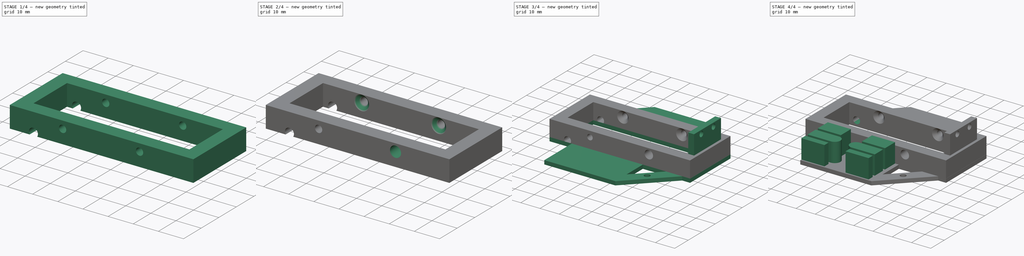
[diagram: build sequence overview — one tinted view per stage of 4, left to right]
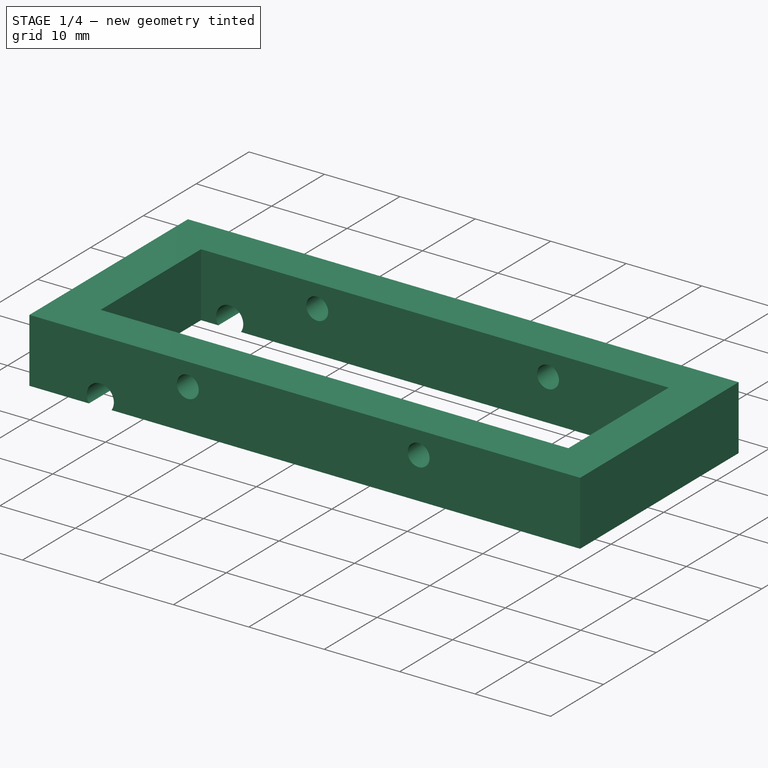
[diagram: stage 1 of 4 — iso view after this stage's code; geometry added in this stage tinted green]
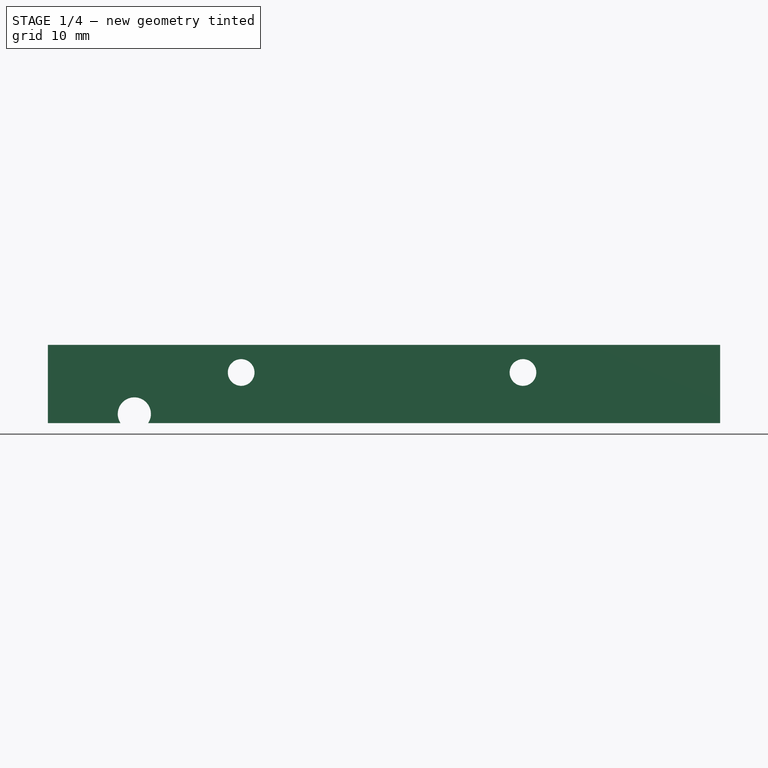
[diagram: stage 1 of 4 — front view after this stage's code; geometry added in this stage tinted green]
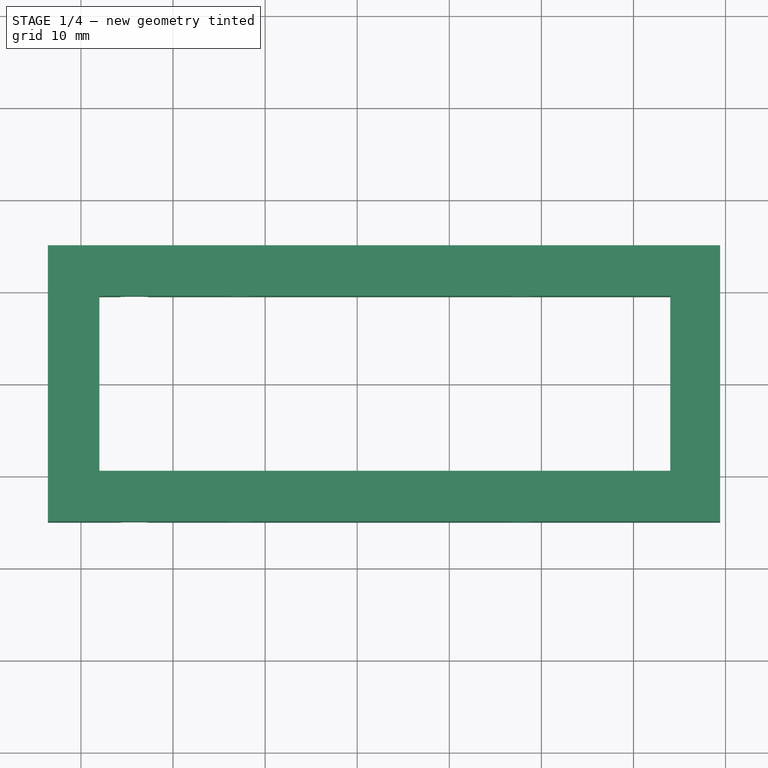
[diagram: stage 1 of 4 — top view after this stage's code; geometry added in this stage tinted green]
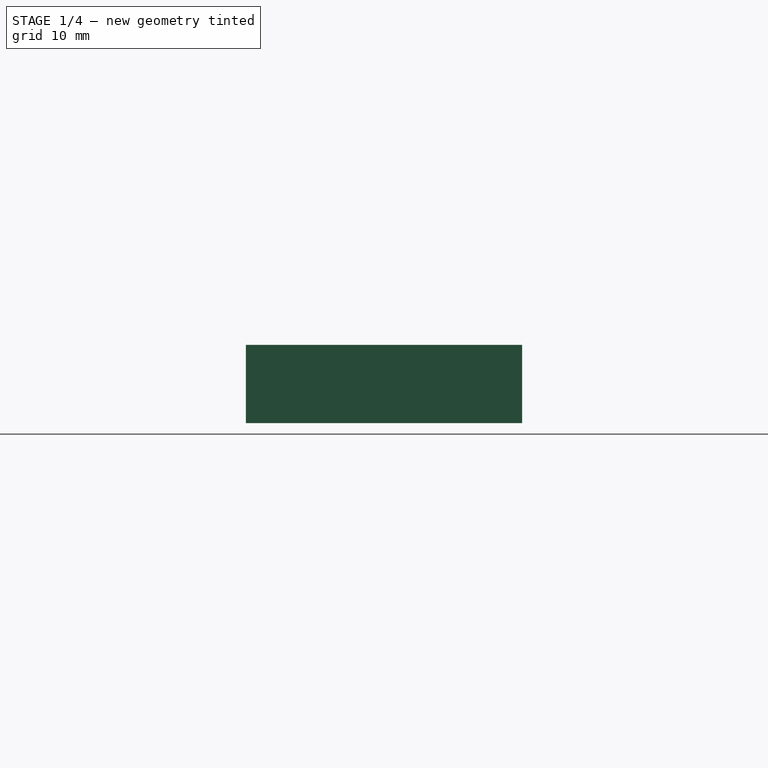
[diagram: stage 1 of 4 — right view after this stage's code; geometry added in this stage tinted green]
FCSTD DOCUMENT  (FreeCAD 0.15R4671 (Git))
Label: PeripheralV6
License: All rights reserved
LicenseURL: http://en.wikipedia.org/wiki/All_rights_reserved
objects: Sketcher::SketchObject×8, PartDesign::Pad×4, PartDesign::Pocket×4, PartDesign::Chamfer×1
note: 25 computed .brp shape members not serialized (recipe doc carries the construction recipe); baked Part::Feature solids carry a one-line shape summary decoded from their .brp

FEATURE [PartDesign::Pad] Pad004
  Length = 8.5
  Length2 = 100
  Placement = pos=(0,0,2) rot=(0,0,1;0rad)
  Sketch = -> Sketch001
  Type = 0
FEATURE [Sketcher::SketchObject] Sketch003
  Placement = pos=(0,15,2) rot=(0,0.707107,0.707107;3.14159rad)
  Support = -> Pad004 [Face1]
  sketch-geometry (3):
    g0: Circle CenterX=-18 CenterY=5.5 CenterZ=0 NormalX=0 NormalY=0 NormalZ=1 Radius=1.45
    g1: Circle CenterX=12.6 CenterY=5.5 CenterZ=0 NormalX=0 NormalY=0 NormalZ=1 Radius=1.45
    g2: Circle CenterX=24.2 CenterY=1 CenterZ=0 NormalX=0 NormalY=0 NormalZ=1 Radius=1.8
  constraints (9):
    c: DistanceY(g1,g0) = 0
    c: Radius(g0) = 1.45
    c: Equal(g0,g1)
    c: DistanceX(g1,g0) = -30.6
    c: DistanceY(g-1,g0) = 5.5
    c: DistanceX(g-1,g0) = -18
    c: Radius(g2) = 1.8
    c: DistanceY(g-1,g2) = 1
    c: DistanceX(g-1,g2) = 24.2
FEATURE [PartDesign::Pocket] Pocket004  label="Pocket002"
  Length = 50
  Placement = pos=(0,0,2) rot=(0,0,1;0rad)
  Sketch = -> Sketch003
  Type = 0
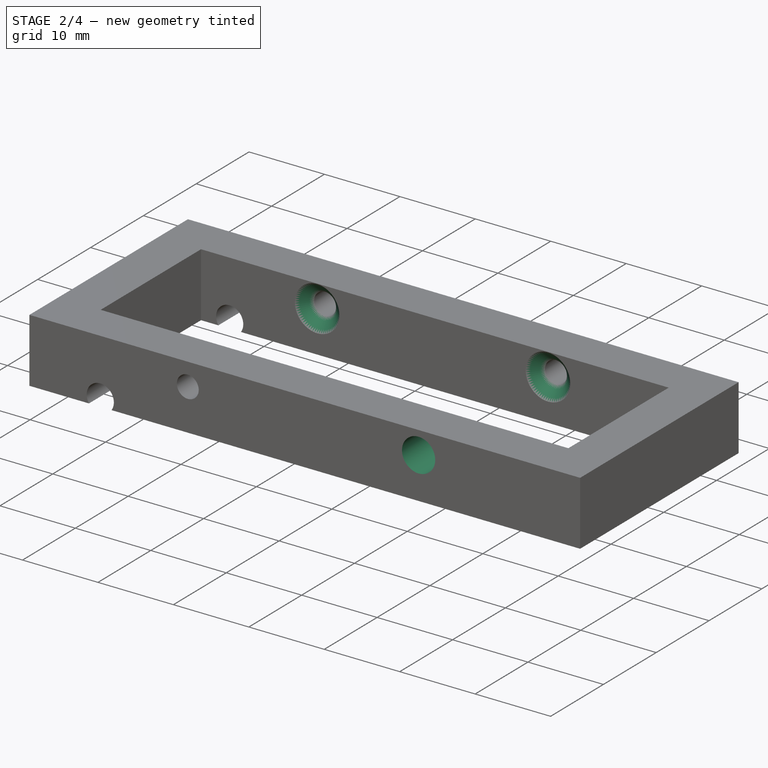
[diagram: stage 2 of 4 — iso view after this stage's code; geometry added in this stage tinted green]
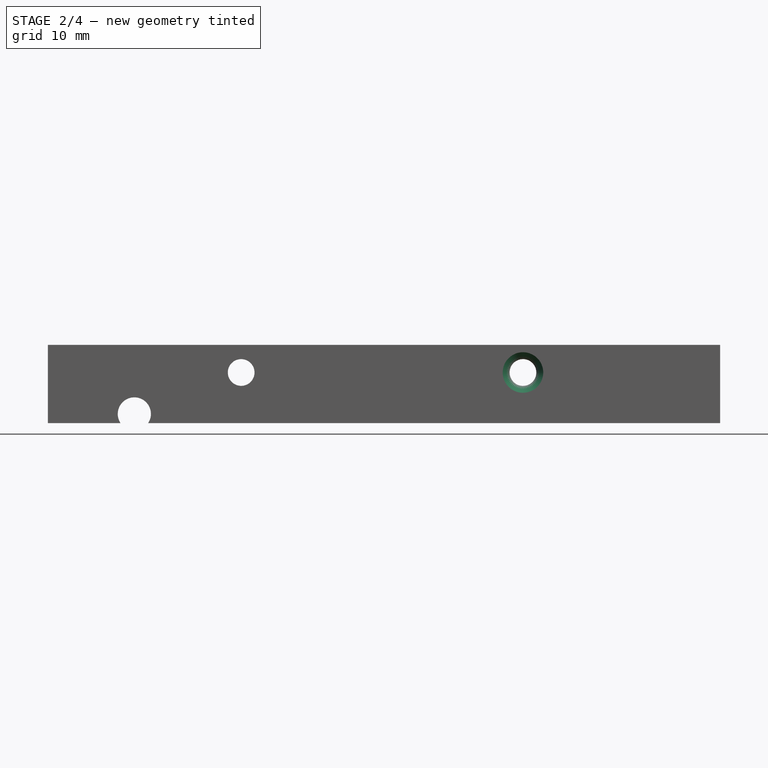
[diagram: stage 2 of 4 — front view after this stage's code; geometry added in this stage tinted green]
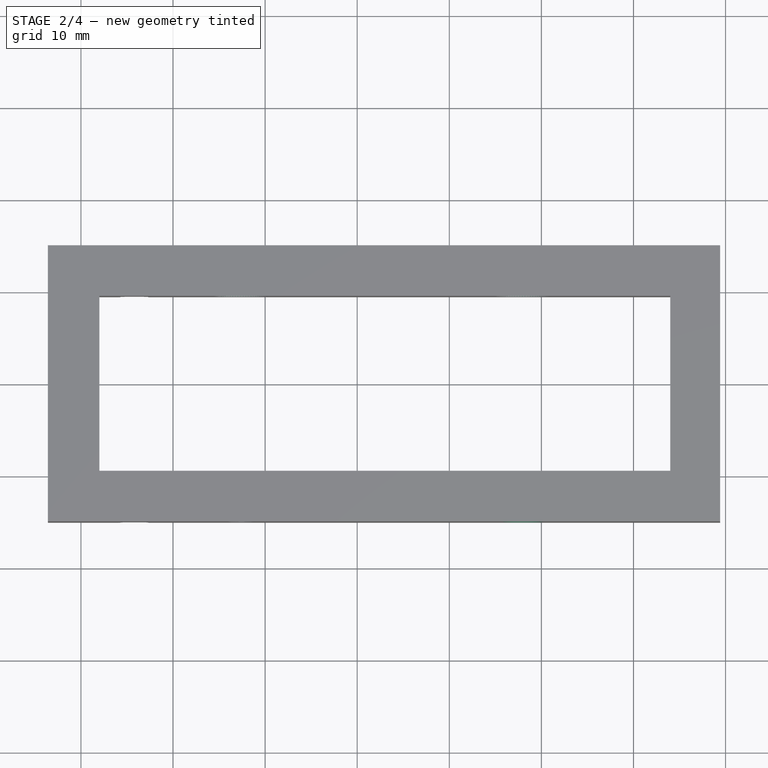
[diagram: stage 2 of 4 — top view after this stage's code; geometry added in this stage tinted green]
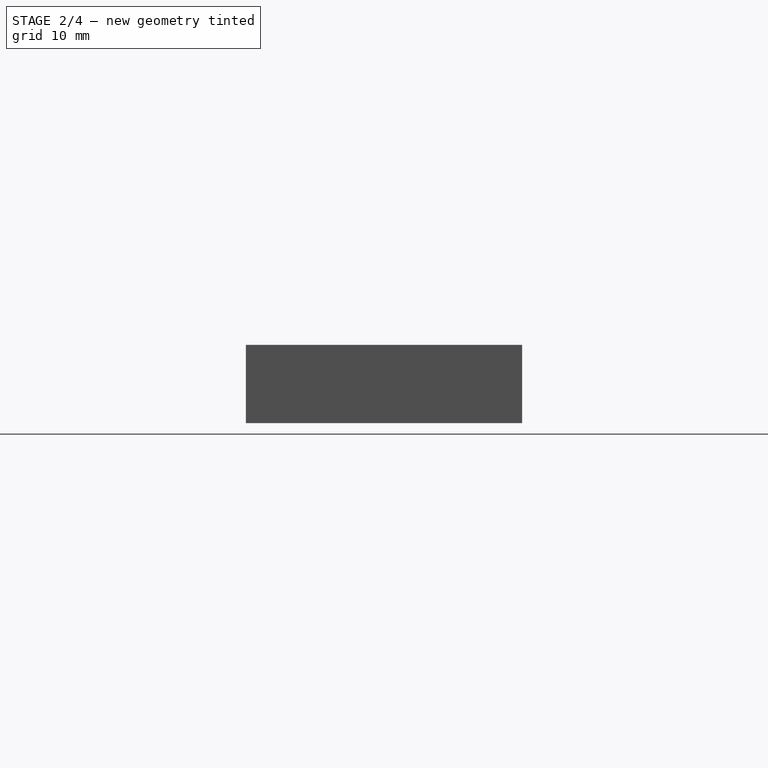
[diagram: stage 2 of 4 — right view after this stage's code; geometry added in this stage tinted green]
FEATURE [Sketcher::SketchObject] Sketch005
  Placement = pos=(0,-15,2) rot=(1,0,0;1.5708rad)
  Support = -> Pocket004 [Face15]
  sketch-geometry (1):
    g0: Circle CenterX=18 CenterY=5.5 CenterZ=0 NormalX=0 NormalY=0 NormalZ=1 Radius=2.2
  constraints (3):
    c: DistanceX(g-1,g0) = 18
    c: DistanceY(g-1,g0) = 5.5
    c: Radius(g0) = 2.2
FEATURE [PartDesign::Pocket] Pocket
  Length = 5.5
  Placement = pos=(0,0,2) rot=(0,0,1;0rad)
  Sketch = -> Sketch005
  Type = 0
FEATURE [PartDesign::Chamfer] Chamfer
  Base = -> Pocket [Edge39,Edge37]
  Placement = pos=(0,0,2) rot=(0,0,1;0rad)
  Size = 1.5
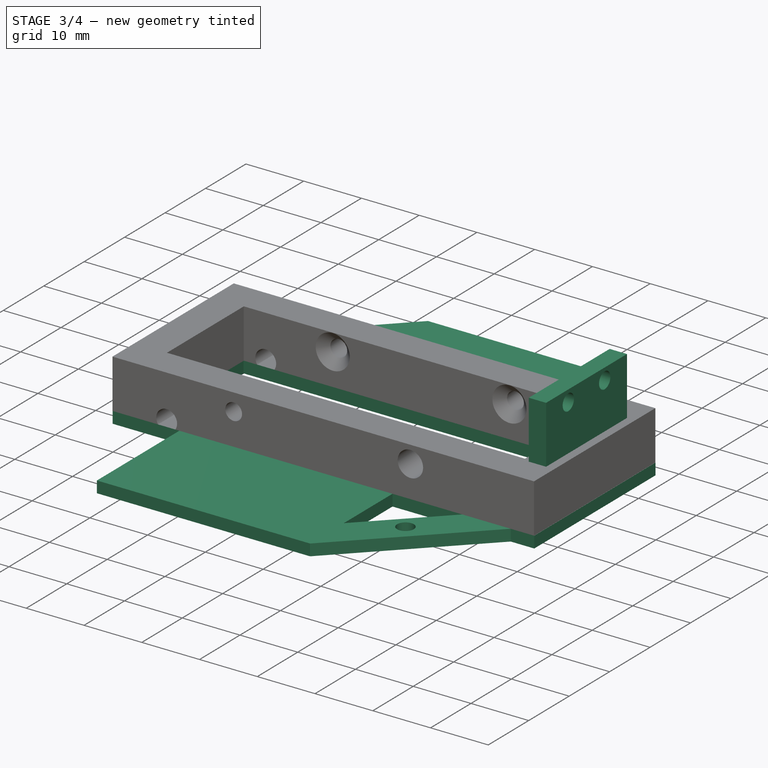
[diagram: stage 3 of 4 — iso view after this stage's code; geometry added in this stage tinted green]
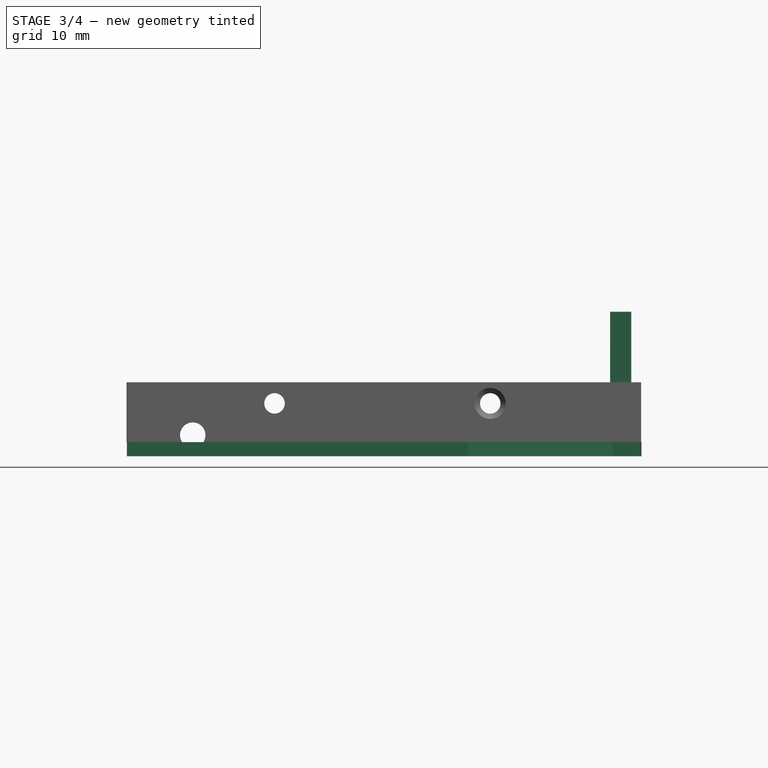
[diagram: stage 3 of 4 — front view after this stage's code; geometry added in this stage tinted green]
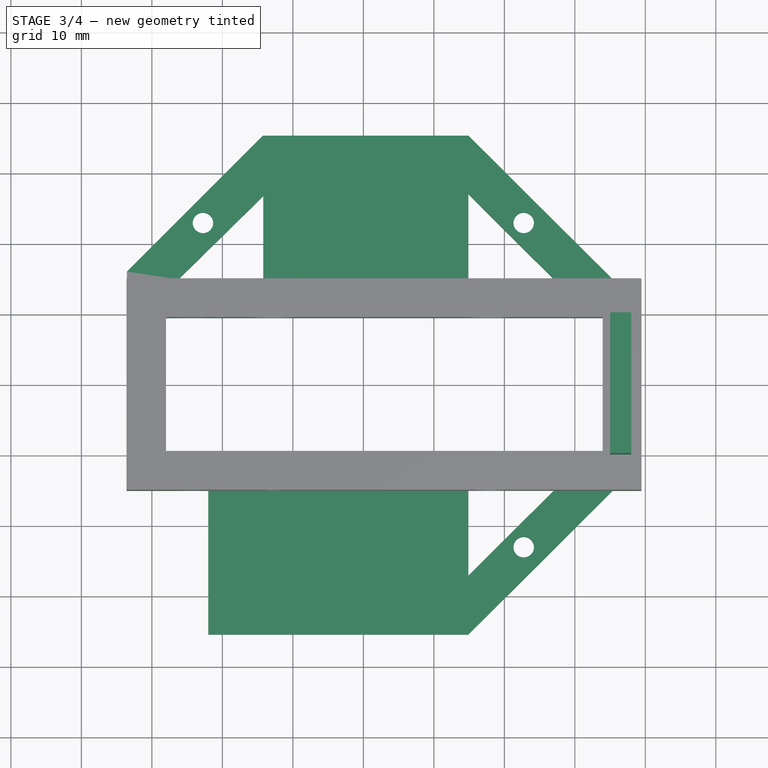
[diagram: stage 3 of 4 — top view after this stage's code; geometry added in this stage tinted green]
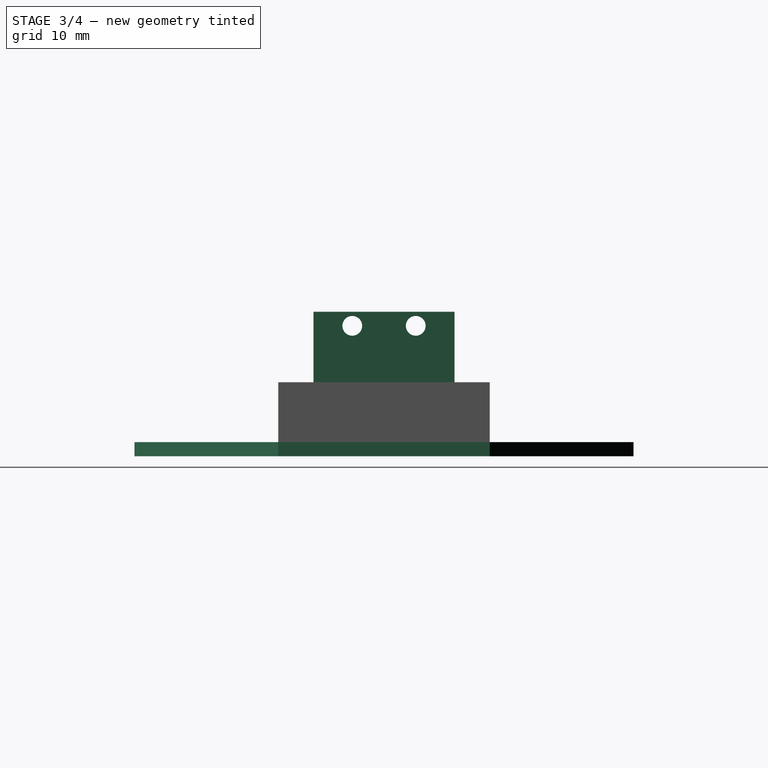
[diagram: stage 3 of 4 — right view after this stage's code; geometry added in this stage tinted green]
FEATURE [PartDesign::Pad] Pad
  Length = 2
  Length2 = 100
  Sketch = -> Sketch
  Type = 0
FEATURE [Sketcher::SketchObject] Sketch006
  Placement = pos=(0,0,10.5) rot=(0,0,1;0rad)
  Support = -> Chamfer [Face10]
  sketch-geometry (4):
    g0: LineSegment StartX=38 StartY=10 StartZ=0 EndX=35 EndY=10 EndZ=0
    g1: LineSegment StartX=35 StartY=10 StartZ=0 EndX=35 EndY=-10 EndZ=0
    g2: LineSegment StartX=35 StartY=-10 StartZ=0 EndX=38 EndY=-10 EndZ=0
    g3: LineSegment StartX=38 StartY=-10 StartZ=0 EndX=38 EndY=10 EndZ=0
  constraints (12):
    c: Coincident(g0,g1)
    c: Coincident(g1,g2)
    c: Coincident(g2,g3)
    c: Coincident(g3,g0)
    c: Horizontal(g0)
    c: Horizontal(g2)
    c: Vertical(g1)
    c: Vertical(g3)
    c: DistanceX(g-1,g0) = 38
    c: DistanceY(g3) = 20
    c: Symmetric(g0,g2,g-1)
    c: DistanceX(g0) = -3
FEATURE [PartDesign::Pad] Pad005
  Length = 10
  Length2 = 100
  Placement = pos=(0,0,2) rot=(0,0,1;0rad)
  Sketch = -> Sketch006
  Type = 0
FEATURE [Sketcher::SketchObject] Sketch007
  Placement = pos=(38,0,2) rot=(0.57735,0.57735,0.57735;2.0944rad)
  Support = -> Pad005 [Face5]
  sketch-geometry (2):
    g0: Circle CenterX=-4.5 CenterY=16.5 CenterZ=0 NormalX=0 NormalY=0 NormalZ=1 Radius=1.4
    g1: Circle CenterX=4.5 CenterY=16.5 CenterZ=0 NormalX=0 NormalY=0 NormalZ=1 Radius=1.4
  constraints (6):
    c: DistanceX(g1,g0) = -9
    c: DistanceY(g1,g0) = 0
    c: Radius(g1) = 1.4
    c: Equal(g1,g0)
    c: Symmetric(g0,g1,g-2)
    c: DistanceY(g-1,g1) = 16.5
FEATURE [PartDesign::Pocket] Pocket006
  Length = 5
  Placement = pos=(0,0,2) rot=(0,0,1;0rad)
  Sketch = -> Sketch007
  Type = 0
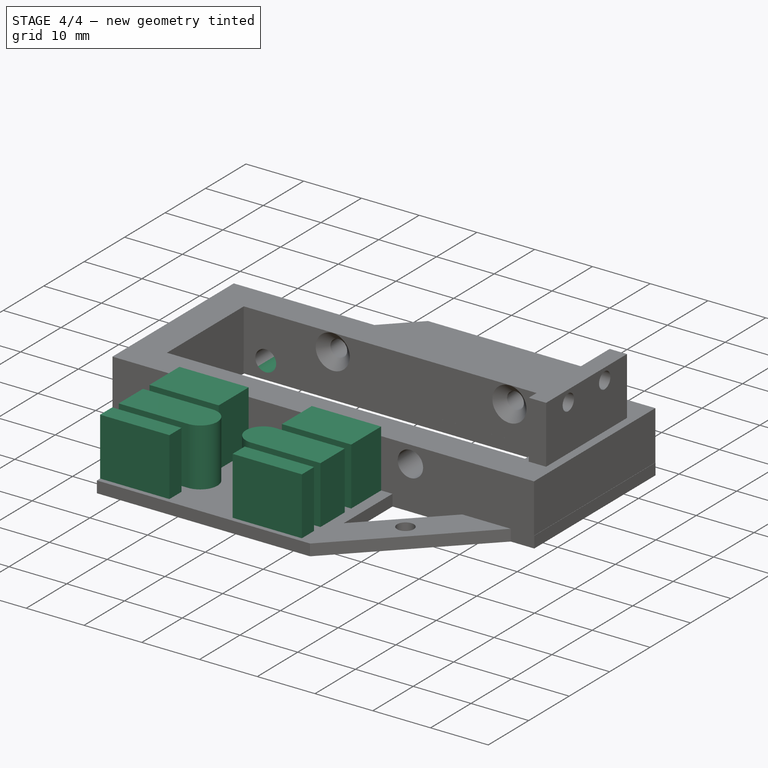
[diagram: stage 4 of 4 — iso view after this stage's code; geometry added in this stage tinted green]
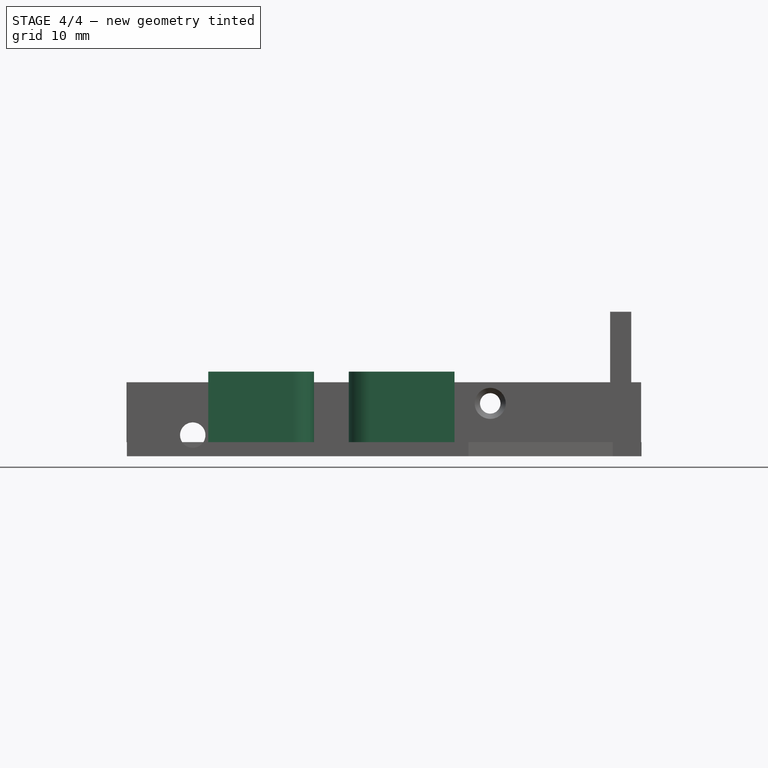
[diagram: stage 4 of 4 — front view after this stage's code; geometry added in this stage tinted green]
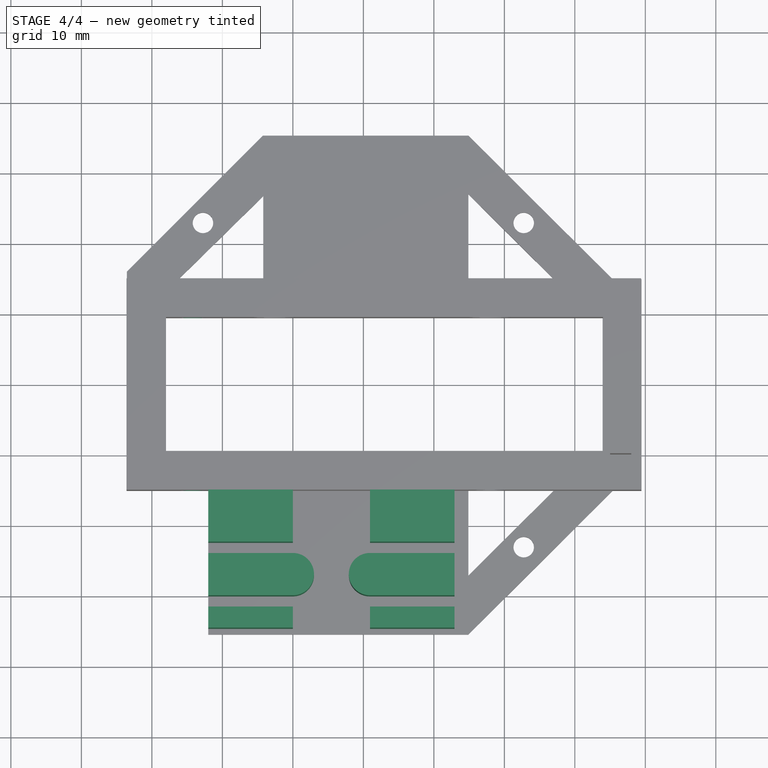
[diagram: stage 4 of 4 — top view after this stage's code; geometry added in this stage tinted green]
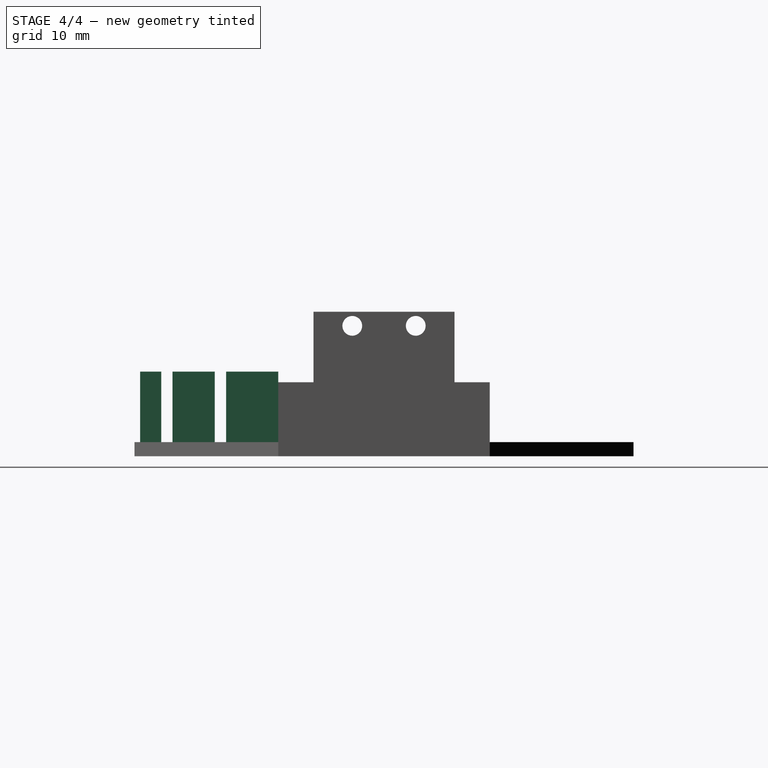
[diagram: stage 4 of 4 — right view after this stage's code; geometry added in this stage tinted green]
FEATURE [Sketcher::SketchObject] Sketch
  sketch-geometry (27):
    g0: Circle CenterX=-22.75 CenterY=23 CenterZ=0 NormalX=0 NormalY=0 NormalZ=1 Radius=1.45
    g1: Circle CenterX=22.75 CenterY=23 CenterZ=0 NormalX=0 NormalY=0 NormalZ=1 Radius=1.45
    g2: Circle CenterX=22.75 CenterY=-23 CenterZ=0 NormalX=0 NormalY=0 NormalZ=1 Radius=1.45
    g3: LineSegment StartX=-28.05 StartY=9.5 StartZ=0 EndX=33.95 EndY=9.5 EndZ=0
    g4: LineSegment StartX=33.95 StartY=9.5 StartZ=0 EndX=33.95 EndY=-9.5 EndZ=0
    g5: LineSegment StartX=33.95 StartY=-9.5 StartZ=0 EndX=-28.05 EndY=-9.5 EndZ=0
    g6: LineSegment StartX=-28.05 StartY=-9.5 StartZ=0 EndX=-28.05 EndY=9.5 EndZ=0
    g7: LineSegment StartX=-33.55 StartY=16.0884 StartZ=0 EndX=-14.25 EndY=35.3884 EndZ=0
    g8: LineSegment StartX=14.8987 StartY=35.3884 StartZ=0 EndX=35.3756 EndY=15 EndZ=0
    g9: LineSegment StartX=-33.55 StartY=-15 StartZ=0 EndX=-33.55 EndY=16.0884 EndZ=0
    g10: LineSegment StartX=14.8987 StartY=-35.3884 StartZ=0 EndX=35.3756 EndY=-15 EndZ=0
    g11: LineSegment StartX=-14.202 StartY=26.7958 StartZ=0 EndX=-26.2128 EndY=15 EndZ=0
    g12: LineSegment StartX=27.0244 StartY=15 StartZ=0 EndX=14.8988 EndY=27.0732 EndZ=0
    g13: LineSegment StartX=14.8988 StartY=-27.0371 StartZ=0 EndX=26.9985 EndY=-14.9897 EndZ=0
    g14: LineSegment StartX=35.3756 StartY=-15 StartZ=0 EndX=39.45 EndY=-15 EndZ=0
    g15: LineSegment StartX=39.45 StartY=-15 StartZ=0 EndX=39.45 EndY=15 EndZ=0
    g16: LineSegment StartX=39.45 StartY=15 StartZ=0 EndX=35.3756 EndY=15 EndZ=0
    g17: LineSegment StartX=14.8987 StartY=-35.3884 StartZ=0 EndX=-22 EndY=-35.3884 EndZ=0
    g18: LineSegment StartX=14.8988 StartY=-27.0371 StartZ=0 EndX=14.8988 EndY=-14.9897 EndZ=0
    g19: LineSegment StartX=14.8988 StartY=-14.9897 StartZ=0 EndX=26.9985 EndY=-14.9897 EndZ=0
    g20: LineSegment StartX=-22 StartY=-35.3884 StartZ=0 EndX=-22 EndY=-15 EndZ=0
    g21: LineSegment StartX=-22 StartY=-15 StartZ=0 EndX=-33.55 EndY=-15 EndZ=0
    g22: LineSegment StartX=-26.2128 StartY=15 StartZ=0 EndX=-14.202 EndY=15 EndZ=0
    g23: LineSegment StartX=-14.202 StartY=15 StartZ=0 EndX=-14.202 EndY=26.7958 EndZ=0
    g24: LineSegment StartX=14.8988 StartY=27.0732 StartZ=0 EndX=14.8988 EndY=15 EndZ=0
    g25: LineSegment StartX=14.8988 StartY=15 StartZ=0 EndX=27.0244 EndY=15 EndZ=0
    g26: LineSegment StartX=-14.25 StartY=35.3884 StartZ=0 EndX=14.8987 EndY=35.3884 EndZ=0
  constraints (71):
    c: Radius(g2) = 1.45
    c: Equal(g2,g1)
    c: Equal(g2,g0)
    c: DistanceX(g1,g2) = 0
    c: DistanceY(g1,g2) = -46
    c: DistanceX(g1,g0) = -45.5
    c: Symmetric(g1,g0,g-2)
    c: Symmetric(g1,g2,g-1)
    c: Coincident(g3,g4)
    c: Coincident(g4,g5)
    c: Coincident(g5,g6)
    c: Coincident(g6,g3)
    c: Horizontal(g3)
    c: Horizontal(g5)
    c: Vertical(g4)
    c: Vertical(g6)
    c: Symmetric(g3,g4,g-1)
    c: DistanceX(g3) = 62
    c: DistanceY(g4) = -19
    c: DistanceX(g0,g3) = -5.3
    c: Coincident(g9,g7)
    c: Vertical(g9)
    c: DistanceY(g0,g7) = 12.3884
    c: DistanceY(g9,g5) = 5.5
    c: Angle(g9,g7) = 2.35619
    c: DistanceX(g0,g7) = 8.5
    c: DistanceX(g2,g10) = -7.85128
    c: DistanceY(g2,g10) = -12.3884
    c: DistanceY(g12,g3) = -5.5
    c: Coincident(g14,g15)
    c: Vertical(g15)
    c: Coincident(g15,g16)
    c: Horizontal(g16)
    c: Horizontal(g14)
    c: DistanceY(g16,g3) = -5.5
    c: DistanceY(g14,g4) = 5.5
    c: Coincident(g16,g8)
    c: Coincident(g14,g10)
    c: DistanceX(g14,g4) = -5.5
    c: DistanceX(g12,g13) = 0
    c: DistanceX(g8,g3) = -1.42564
    c: Parallel(g8,g12)
    c: DistanceX(g10,g8) = 0
    c: Parallel(g13,g10)
    c: DistanceX(g3,g7) = -5.5
    c: Coincident(g10,g17)
    c: Horizontal(g17)
    c: Coincident(g13,g18)
    c: Vertical(g18)
    c: Coincident(g18,g19)
    c: Coincident(g19,g13)
    c: Horizontal(g19)
    c: Coincident(g20,g17)
    c: Vertical(g20)
    c: Coincident(g21,g20)
    c: Coincident(g21,g9)
    c: Horizontal(g21)
    c: DistanceX(g-1,g17) = -22
    c: Coincident(g11,g22)
    c: Horizontal(g22)
    c: Coincident(g22,g23)
    c: Coincident(g23,g11)
    c: Vertical(g23)
    c: Coincident(g12,g24)
    c: Vertical(g24)
    c: Coincident(g24,g25)
    c: Coincident(g25,g12)
    c: Horizontal(g25)
    c: Coincident(g26,g7)
    c: Coincident(g26,g8)
    c: Horizontal(g26)
FEATURE [Sketcher::SketchObject] Sketch001
  Placement = pos=(0,0,2) rot=(0,0,1;0rad)
  sketch-geometry (8):
    g0: LineSegment StartX=-28 StartY=9.5 StartZ=0 EndX=34 EndY=9.5 EndZ=0
    g1: LineSegment StartX=34 StartY=9.5 StartZ=0 EndX=34 EndY=-9.5 EndZ=0
    g2: LineSegment StartX=34 StartY=-9.5 StartZ=0 EndX=-28 EndY=-9.5 EndZ=0
    g3: LineSegment StartX=-28 StartY=-9.5 StartZ=0 EndX=-28 EndY=9.5 EndZ=0
    g4: LineSegment StartX=-33.59 StartY=15 StartZ=0 EndX=39.41 EndY=15 EndZ=0
    g5: LineSegment StartX=39.41 StartY=15 StartZ=0 EndX=39.41 EndY=-15 EndZ=0
    g6: LineSegment StartX=-33.59 StartY=-15 StartZ=0 EndX=-33.59 EndY=15 EndZ=0
    g7: LineSegment StartX=-33.59 StartY=-15 StartZ=0 EndX=39.41 EndY=-15 EndZ=0
  constraints (24):
    c: Coincident(g0,g1)
    c: Coincident(g1,g2)
    c: Coincident(g2,g3)
    c: Coincident(g3,g0)
    c: Horizontal(g0)
    c: Horizontal(g2)
    c: Vertical(g1)
    c: Vertical(g3)
    c: Coincident(g4,g5)
    c: Coincident(g6,g4)
    c: Horizontal(g4)
    c: Vertical(g5)
    c: Vertical(g6)
    c: DistanceY(g1) = -19
    c: Symmetric(g0,g1,g-1)
    c: DistanceY(g5,g4) = 30
    c: Symmetric(g4,g5,g-1)
    c: DistanceX(g0,g0) = 62
    c: DistanceX(g-1,g0) = 34
    c: DistanceX(g4,g4) = 73
    c: DistanceX(g-1,g4) = -33.59
    c: Coincident(g7,g5)
    c: Horizontal(g7)
    c: Coincident(g7,g6)
FEATURE [Sketcher::SketchObject] Sketch002
  Placement = pos=(0,0,2) rot=(0,0,1;0rad)
  sketch-geometry (24):
    g0: LineSegment StartX=-22 StartY=-24 StartZ=0 EndX=-10 EndY=-24 EndZ=0
    g1: LineSegment StartX=-10 StartY=-30 StartZ=0 EndX=-22 EndY=-30 EndZ=0
    g2: LineSegment StartX=-22 StartY=-30 StartZ=0 EndX=-22 EndY=-24 EndZ=0
    g3: ArcOfCircle CenterX=-10 CenterY=-27 CenterZ=0 NormalX=0 NormalY=0 NormalZ=1 Radius=3 StartAngle=4.71239 EndAngle=7.85398
    g4: LineSegment StartX=-22 StartY=-22.4 StartZ=0 EndX=-10 EndY=-22.4 EndZ=0
    g5: LineSegment StartX=-10 StartY=-22.4 StartZ=0 EndX=-10 EndY=-15 EndZ=0
    g6: LineSegment StartX=-10 StartY=-15 StartZ=0 EndX=-22 EndY=-15 EndZ=0
    g7: LineSegment StartX=-22 StartY=-15 StartZ=0 EndX=-22 EndY=-22.4 EndZ=0
    g8: LineSegment StartX=12.9365 StartY=-22.4 StartZ=0 EndX=0.936471 EndY=-22.4 EndZ=0
    g9: LineSegment StartX=0.936471 StartY=-22.4 StartZ=0 EndX=0.936471 EndY=-15 EndZ=0
    g10: LineSegment StartX=0.936471 StartY=-15 StartZ=0 EndX=12.9365 EndY=-15 EndZ=0
    g11: LineSegment StartX=12.9365 StartY=-15 StartZ=0 EndX=12.9365 EndY=-22.4 EndZ=0
    g12: ArcOfCircle CenterX=0.936471 CenterY=-27 CenterZ=0 NormalX=0 NormalY=0 NormalZ=1 Radius=3 StartAngle=1.5708 EndAngle=4.71239
    g13: LineSegment StartX=0.936471 StartY=-24 StartZ=0 EndX=12.9365 EndY=-24 EndZ=0
    g14: LineSegment StartX=12.9365 StartY=-24 StartZ=0 EndX=12.9365 EndY=-30 EndZ=0
    g15: LineSegment StartX=12.9365 StartY=-30 StartZ=0 EndX=0.936471 EndY=-30 EndZ=0
    g16: LineSegment StartX=-10 StartY=-34.6 StartZ=0 EndX=-22 EndY=-34.6 EndZ=0
    g17: LineSegment StartX=-22 StartY=-34.6 StartZ=0 EndX=-22 EndY=-31.6 EndZ=0
    g18: LineSegment StartX=-22 StartY=-31.6 StartZ=0 EndX=-10 EndY=-31.6 EndZ=0
    g19: LineSegment StartX=-10 StartY=-31.6 StartZ=0 EndX=-10 EndY=-34.6 EndZ=0
    g20: LineSegment StartX=12.9365 StartY=-34.6 StartZ=0 EndX=0.936471 EndY=-34.6 EndZ=0
    g21: LineSegment StartX=0.936471 StartY=-34.6 StartZ=0 EndX=0.936471 EndY=-31.6 EndZ=0
    g22: LineSegment StartX=0.936471 StartY=-31.6 StartZ=0 EndX=12.9365 EndY=-31.6 EndZ=0
    g23: LineSegment StartX=12.9365 StartY=-31.6 StartZ=0 EndX=12.9365 EndY=-34.6 EndZ=0
  constraints (73):
    c: Coincident(g1,g2)
    c: Coincident(g2,g0)
    c: Horizontal(g0)
    c: Horizontal(g1)
    c: Vertical(g2)
    c: DistanceY(g-1,g1) = -30
    c: Coincident(g3,g0)
    c: Coincident(g3,g1)
    c: Tangent(g1,g3)
    c: Tangent(g3,g0)
    c: DistanceY(g0,g1) = -6
    c: Coincident(g4,g5)
    c: Coincident(g5,g6)
    c: Coincident(g6,g7)
    c: Coincident(g7,g4)
    c: Horizontal(g4)
    c: Horizontal(g6)
    c: Vertical(g5)
    c: Vertical(g7)
    c: DistanceY(g-1,g5) = -15
    c: DistanceY(g4,g0) = -1.6
    c: DistanceX(g4,g0) = 0
    c: Coincident(g8,g9)
    c: Coincident(g9,g10)
    c: Coincident(g10,g11)
    c: Coincident(g11,g8)
    c: Horizontal(g8)
    c: Horizontal(g10)
    c: Vertical(g9)
    c: Vertical(g11)
    c: Horizontal(g13)
    c: Coincident(g13,g14)
    c: Vertical(g14)
    c: Coincident(g14,g15)
    c: Coincident(g15,g12)
    c: Horizontal(g15)
    c: Coincident(g12,g13)
    c: Tangent(g13,g12)
    c: Tangent(g15,g12)
    c: DistanceY(g12,g1) = 0
    c: DistanceY(g12,g0) = 0
    c: Equal(g13,g0)
    c: DistanceY(g8,g4) = 0
    c: DistanceY(g9,g5) = 0
    c: Equal(g10,g6)
    c: DistanceX(g13,g8) = 0
    c: DistanceX(g-1,g4) = -10
    c: DistanceX(g1) = -12
    c: DistanceX(g4) = 12
    c: Coincident(g16,g17)
    c: Coincident(g17,g18)
    c: Coincident(g18,g19)
    c: Coincident(g19,g16)
    c: Horizontal(g16)
    c: Horizontal(g18)
    c: Vertical(g17)
    c: Vertical(g19)
    c: Coincident(g20,g21)
    c: Coincident(g21,g22)
    c: Coincident(g22,g23)
    c: Coincident(g23,g20)
    c: Horizontal(g20)
    c: Horizontal(g22)
    c: Vertical(g21)
    c: Vertical(g23)
    c: DistanceX(g14,g22) = 0
    c: DistanceX(g17,g1) = 0
    c: Equal(g18,g4)
    c: Equal(g4,g22)
    c: Equal(g21,g19)
    c: DistanceY(g21,g12) = 1.6
    c: DistanceY(g21,g18) = 0
    c: DistanceY(g21) = 3
FEATURE [PartDesign::Pad] Pad002
  Length = 10
  Length2 = 100
  Placement = pos=(0,0,2) rot=(0,0,1;0rad)
  Sketch = -> Sketch002
  Type = 0
FEATURE [Sketcher::SketchObject] Sketch004
  Placement = pos=(0,15,0) rot=(0,0.707107,0.707107;3.14159rad)
  Support = -> Pad [Face8]
  sketch-geometry (1):
    g0: Circle CenterX=24.2 CenterY=3 CenterZ=0 NormalX=0 NormalY=0 NormalZ=1 Radius=1.8
  constraints (3):
    c: Radius(g0) = 1.8
    c: DistanceY(g-1,g0) = 3
    c: DistanceX(g-1,g0) = 24.2
FEATURE [PartDesign::Pocket] Pocket005
  Length = 50
  Sketch = -> Sketch004
  Type = 0
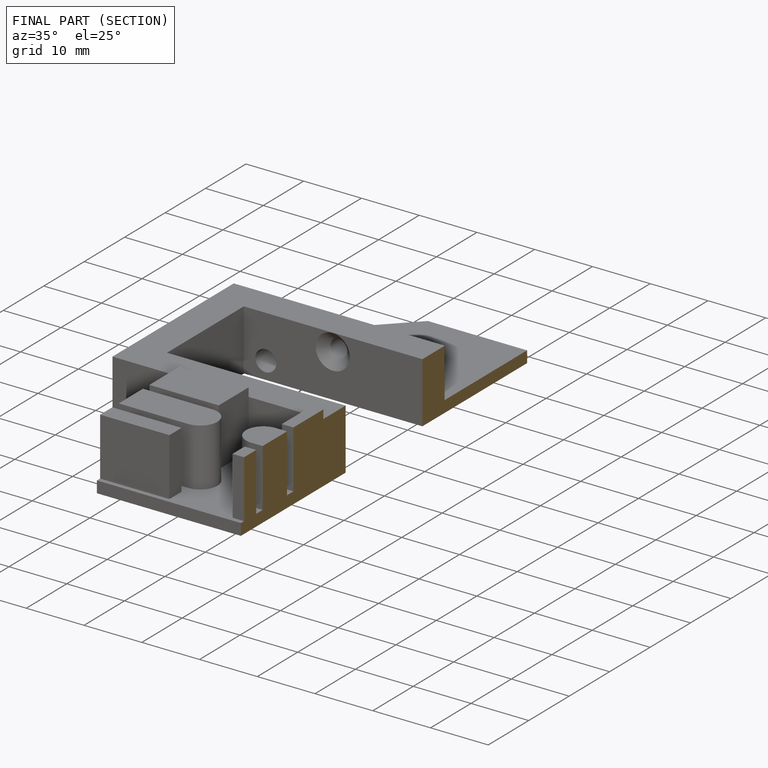
[diagram: finished part — half-section view (interior)]
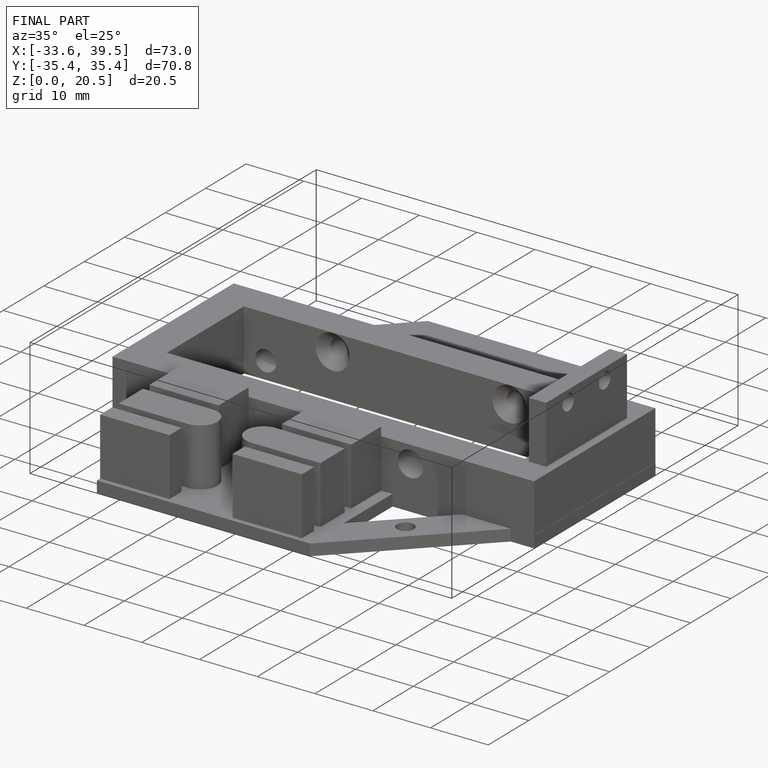
[diagram: finished part — iso view with bounding-box wireframe]
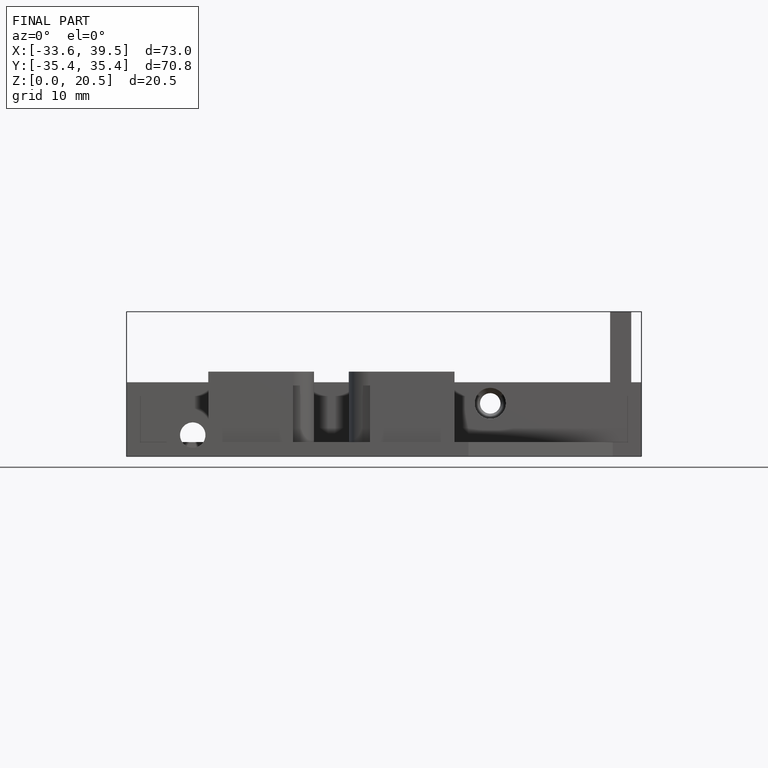
[diagram: finished part — front view with bounding-box wireframe]
